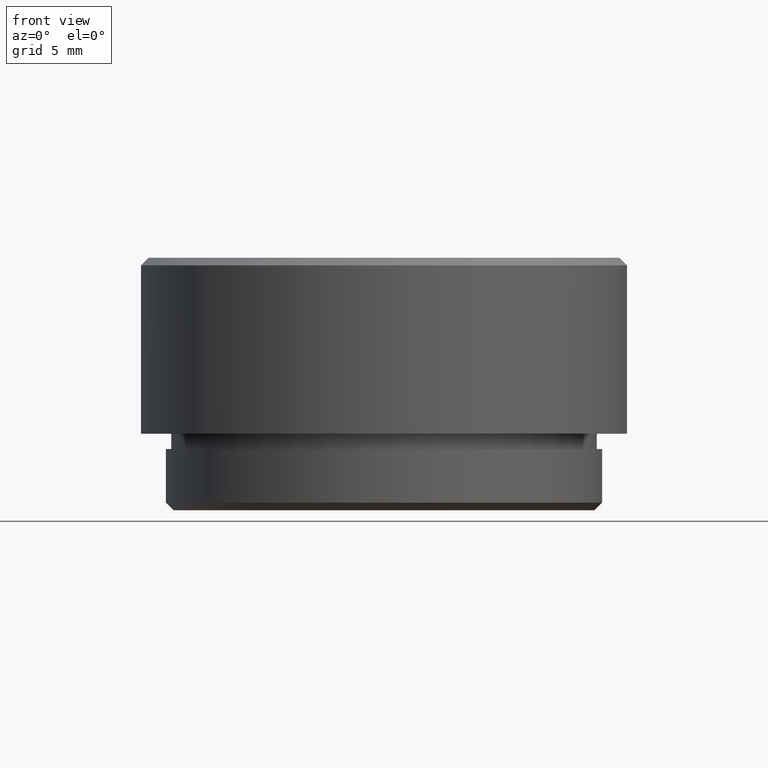
[diagram: clean part render]
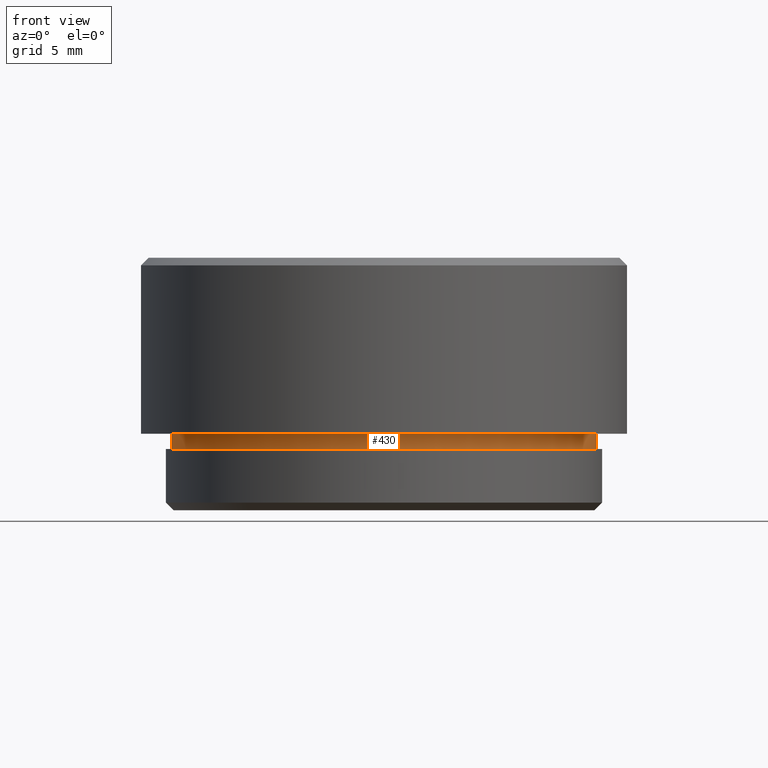
[diagram: same view with one face highlighted and labeled with its STEP entity id]
A machine part, front view. The second image highlights one B-rep face of the part: STEP entity #430.
In plain terms, the highlighted cylindrical surface (partial cylindrical patch) has radius 13.9 mm, axis along (0, 0, 1).
Its self-contained STEP definition (entity closure, byte-faithful):
#53 = EDGE_LOOP ( 'NONE', ( #385, #427, #254, #1016 ) ) ;
#74 = DIRECTION ( 'NONE',  ( 0.000000000000000000, 0.000000000000000000, 1.000000000000000000 ) ) ;
#195 = CIRCLE ( 'NONE', #620, 13.90000000000000036 ) ;
#204 = FACE_OUTER_BOUND ( 'NONE', #53, .T. ) ;
#224 = CARTESIAN_POINT ( 'NONE',  ( 0.000000000000000000, 0.000000000000000000, 5.000000000000000000 ) ) ;
#235 = DIRECTION ( 'NONE',  ( -1.000000000000000000, 0.000000000000000000, 0.000000000000000000 ) ) ;
#254 = ORIENTED_EDGE ( 'NONE', *, *, #1232, .T. ) ;
#261 = CARTESIAN_POINT ( 'NONE',  ( -13.90000000000000036, 1.702259050814821084E-15, 4.000000000000000000 ) ) ;
#267 = CARTESIAN_POINT ( 'NONE',  ( -13.90000000000000036, 1.702259050814821084E-15, 5.000000000000000000 ) ) ;
#353 = DIRECTION ( 'NONE',  ( 0.000000000000000000, 0.000000000000000000, -1.000000000000000000 ) ) ;
#385 = ORIENTED_EDGE ( 'NONE', *, *, #1153, .F. ) ;
#427 = ORIENTED_EDGE ( 'NONE', *, *, #1167, .F. ) ;
#430 = ADVANCED_FACE ( 'NONE', ( #204 ), #714, .T. ) ;
#457 = DIRECTION ( 'NONE',  ( -1.000000000000000000, 0.000000000000000000, 0.000000000000000000 ) ) ;
#458 = CARTESIAN_POINT ( 'NONE',  ( 0.000000000000000000, 0.000000000000000000, 4.000000000000000000 ) ) ;
#504 = EDGE_CURVE ( 'NONE', #1438, #1705, #195, .T. ) ;
#591 = DIRECTION ( 'NONE',  ( 0.000000000000000000, 0.000000000000000000, 1.000000000000000000 ) ) ;
#620 = AXIS2_PLACEMENT_3D ( 'NONE', #224, #353, #235 ) ;
#707 = VERTEX_POINT ( 'NONE', #1582 ) ;
#714 = CYLINDRICAL_SURFACE ( 'NONE', #1398, 13.90000000000000036 ) ;
#730 = VERTEX_POINT ( 'NONE', #261 ) ;
#737 = CARTESIAN_POINT ( 'NONE',  ( 0.000000000000000000, 0.000000000000000000, 4.000000000000000000 ) ) ;
#744 = LINE ( 'NONE', #882, #978 ) ;
#847 = LINE ( 'NONE', #1264, #1244 ) ;
#882 = CARTESIAN_POINT ( 'NONE',  ( 13.90000000000000036, 0.000000000000000000, 4.000000000000000000 ) ) ;
#978 = VECTOR ( 'NONE', #591, 1000.000000000000000 ) ;
#1016 = ORIENTED_EDGE ( 'NONE', *, *, #504, .T. ) ;
#1153 = EDGE_CURVE ( 'NONE', #730, #1705, #847, .T. ) ;
#1161 = DIRECTION ( 'NONE',  ( 1.000000000000000000, 0.000000000000000000, 0.000000000000000000 ) ) ;
#1167 = EDGE_CURVE ( 'NONE', #707, #730, #1239, .T. ) ;
#1232 = EDGE_CURVE ( 'NONE', #707, #1438, #744, .T. ) ;
#1239 = CIRCLE ( 'NONE', #1509, 13.90000000000000036 ) ;
#1244 = VECTOR ( 'NONE', #1410, 1000.000000000000000 ) ;
#1264 = CARTESIAN_POINT ( 'NONE',  ( -13.90000000000000036, 1.702259050814821084E-15, 4.000000000000000000 ) ) ;
#1398 = AXIS2_PLACEMENT_3D ( 'NONE', #458, #74, #1161 ) ;
#1410 = DIRECTION ( 'NONE',  ( 0.000000000000000000, 0.000000000000000000, 1.000000000000000000 ) ) ;
#1418 = DIRECTION ( 'NONE',  ( 0.000000000000000000, 0.000000000000000000, -1.000000000000000000 ) ) ;
#1438 = VERTEX_POINT ( 'NONE', #1608 ) ;
#1509 = AXIS2_PLACEMENT_3D ( 'NONE', #737, #1418, #457 ) ;
#1582 = CARTESIAN_POINT ( 'NONE',  ( 13.90000000000000036, 0.000000000000000000, 4.000000000000000000 ) ) ;
#1608 = CARTESIAN_POINT ( 'NONE',  ( 13.90000000000000036, 0.000000000000000000, 5.000000000000000000 ) ) ;
#1705 = VERTEX_POINT ( 'NONE', #267 ) ;